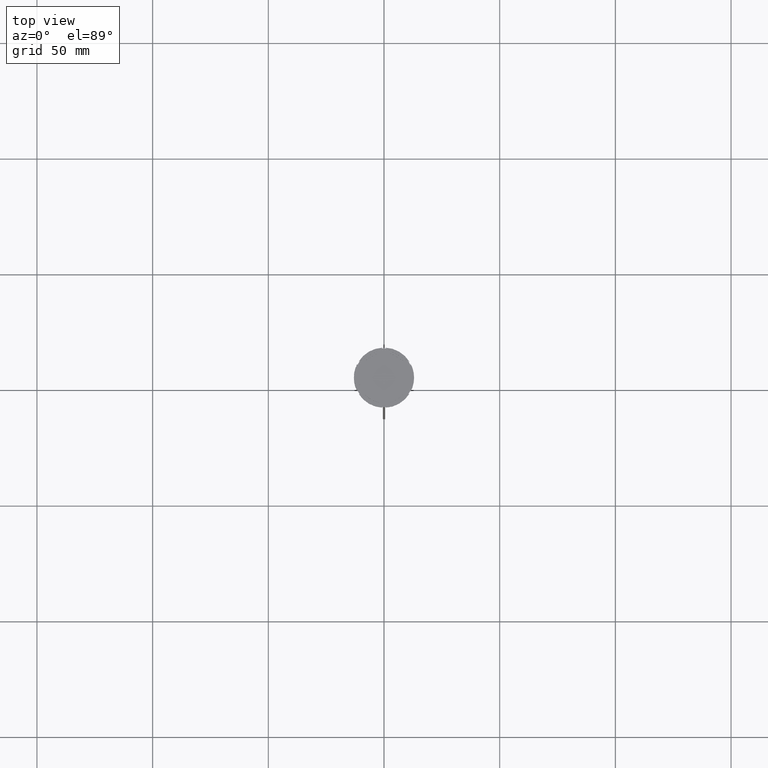
[diagram: clean part render]
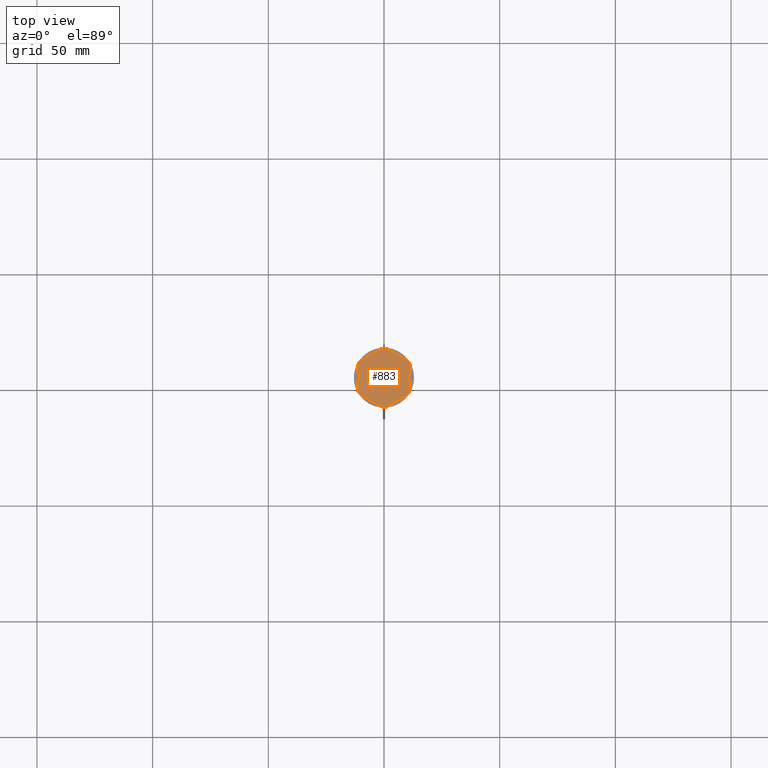
[diagram: same view with one face highlighted and labeled with its STEP entity id]
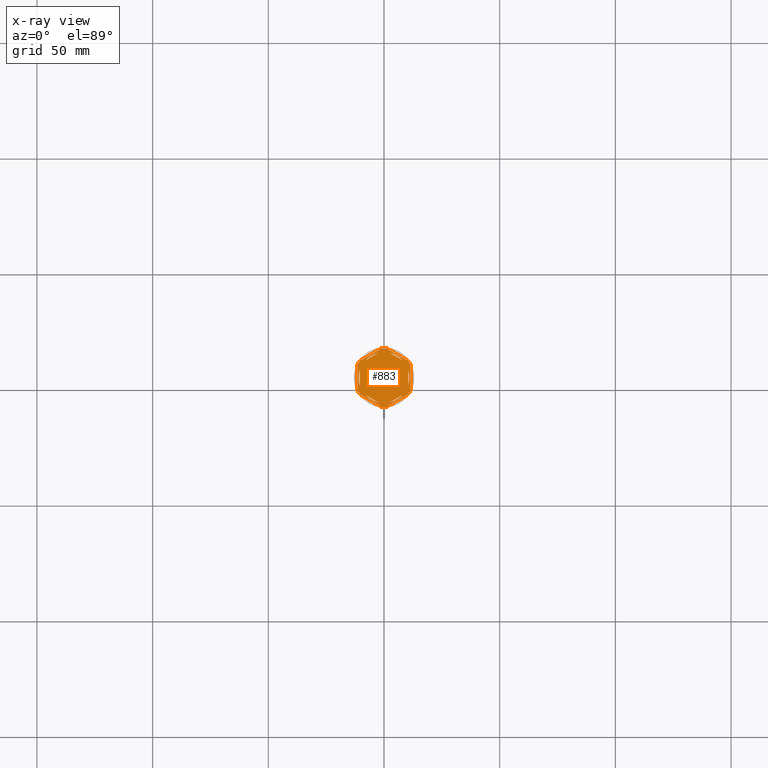
[diagram: x-ray of the same camera — body ghosted, the highlighted face saturated]
A machine part, top view. The second image highlights one B-rep face of the part: STEP entity #883.
The next image is the same camera in x-ray: the body ghosted, the highlighted face saturated — about 0% of this face is hidden behind the body in this view.
In plain terms, the highlighted planar face has unit normal (0, 0, 1).
Its self-contained STEP definition (entity closure, byte-faithful):
#8 = CARTESIAN_POINT ( 'NONE',  ( -10.49999999999999822, -6.062177826491068622, -1.000000000000000888 ) ) ;
#11 = CARTESIAN_POINT ( 'NONE',  ( 2.410545827099861871, 10.73262637081210791, -1.000000000000000888 ) ) ;
#41 = EDGE_CURVE ( 'NONE', #2086, #2226, #2778, .T. ) ;
#66 = ORIENTED_EDGE ( 'NONE', *, *, #1822, .T. ) ;
#82 = CIRCLE ( 'NONE', #1398, 12.69999999999999929 ) ;
#97 = CIRCLE ( 'NONE', #1325, 11.00000000000000000 ) ;
#116 = DIRECTION ( 'NONE',  ( 1.000000000000000000, 0.000000000000000000, 0.000000000000000000 ) ) ;
#120 = ORIENTED_EDGE ( 'NONE', *, *, #1477, .T. ) ;
#124 = CIRCLE ( 'NONE', #1816, 11.00000000000000000 ) ;
#132 = CARTESIAN_POINT ( 'NONE',  ( 1.083095244168781557, 12.65373086058254160, -1.000000000000000000 ) ) ;
#135 = CARTESIAN_POINT ( 'NONE',  ( 10.41690475583121867, -7.264853426459537467, -1.000000000000000000 ) ) ;
#140 = VERTEX_POINT ( 'NONE', #1585 ) ;
#149 = LINE ( 'NONE', #2392, #877 ) ;
#151 = LINE ( 'NONE', #8, #2001 ) ;
#156 = CARTESIAN_POINT ( 'NONE',  ( 11.50000000000000000, 6.639528095680698350, -1.000000000000000000 ) ) ;
#183 = DIRECTION ( 'NONE',  ( -0.8660254037844385966, -0.5000000000000001110, 0.000000000000000000 ) ) ;
#186 = DIRECTION ( 'NONE',  ( 1.000000000000000000, 0.000000000000000000, 0.000000000000000000 ) ) ;
#211 = CARTESIAN_POINT ( 'NONE',  ( 0.000000000000000000, 0.000000000000000000, -1.000000000000000000 ) ) ;
#223 = CARTESIAN_POINT ( 'NONE',  ( -2.410545827099867200, 10.73262637081210613, -1.000000000000000888 ) ) ;
#236 = VERTEX_POINT ( 'NONE', #1287 ) ;
#249 = VECTOR ( 'NONE', #871, 1000.000000000000227 ) ;
#261 = VERTEX_POINT ( 'NONE', #1957 ) ;
#269 = ORIENTED_EDGE ( 'NONE', *, *, #1242, .F. ) ;
#272 = CIRCLE ( 'NONE', #1066, 11.00000000000000000 ) ;
#287 = CARTESIAN_POINT ( 'NONE',  ( -10.49999999999999822, 6.062177826491068622, -1.000000000000000888 ) ) ;
#297 = CARTESIAN_POINT ( 'NONE',  ( 0.000000000000000000, 0.000000000000000000, -1.000000000000000000 ) ) ;
#312 = DIRECTION ( 'NONE',  ( 1.000000000000000000, 0.000000000000000000, 0.000000000000000000 ) ) ;
#325 = CARTESIAN_POINT ( 'NONE',  ( 11.49999999999999822, -6.639528095680694797, -1.000000000000000000 ) ) ;
#335 = AXIS2_PLACEMENT_3D ( 'NONE', #699, #1592, #1394 ) ;
#350 = EDGE_CURVE ( 'NONE', #2033, #366, #1837, .T. ) ;
#366 = VERTEX_POINT ( 'NONE', #768 ) ;
#380 = VECTOR ( 'NONE', #1051, 1000.000000000000000 ) ;
#381 = DIRECTION ( 'NONE',  ( -1.430775808321104180E-16, -1.000000000000000000, 0.000000000000000000 ) ) ;
#383 = DIRECTION ( 'NONE',  ( -0.000000000000000000, -0.000000000000000000, -1.000000000000000000 ) ) ;
#396 = DIRECTION ( 'NONE',  ( 1.000000000000000000, -1.776356839400250465E-14, 0.000000000000000000 ) ) ;
#400 = DIRECTION ( 'NONE',  ( 0.8660254037844385966, 0.4999999999999999445, 0.000000000000000000 ) ) ;
#435 = ORIENTED_EDGE ( 'NONE', *, *, #2363, .F. ) ;
#446 = CARTESIAN_POINT ( 'NONE',  ( -11.50000000000000000, -6.639528095680696573, -1.000000000000000000 ) ) ;
#459 = DIRECTION ( 'NONE',  ( -0.8660254037844384856, 0.5000000000000002220, 0.000000000000000000 ) ) ;
#460 = ORIENTED_EDGE ( 'NONE', *, *, #2708, .F. ) ;
#502 = DIRECTION ( 'NONE',  ( 0.000000000000000000, 1.000000000000000000, 0.000000000000000000 ) ) ;
#512 = EDGE_CURVE ( 'NONE', #1300, #1795, #1274, .T. ) ;
#551 = CARTESIAN_POINT ( 'NONE',  ( 0.000000000000000000, 0.000000000000000000, -1.000000000000000000 ) ) ;
#575 = VERTEX_POINT ( 'NONE', #1467 ) ;
#583 = EDGE_CURVE ( 'NONE', #1951, #1988, #1178, .T. ) ;
#597 = DIRECTION ( 'NONE',  ( 0.8660254037844387076, -0.4999999999999999445, 0.000000000000000000 ) ) ;
#607 = VERTEX_POINT ( 'NONE', #132 ) ;
#611 = CIRCLE ( 'NONE', #2249, 12.69999999999999929 ) ;
#621 = FACE_BOUND ( 'NONE', #1056, .T. ) ;
#623 = LINE ( 'NONE', #2623, #2156 ) ;
#637 = ORIENTED_EDGE ( 'NONE', *, *, #1412, .T. ) ;
#643 = VERTEX_POINT ( 'NONE', #826 ) ;
#672 = CARTESIAN_POINT ( 'NONE',  ( 0.000000000000000000, 0.000000000000000000, -1.000000000000000000 ) ) ;
#699 = CARTESIAN_POINT ( 'NONE',  ( 0.000000000000000000, 0.000000000000000000, -1.000000000000000000 ) ) ;
#724 = EDGE_CURVE ( 'NONE', #1951, #261, #1290, .T. ) ;
#747 = CIRCLE ( 'NONE', #2150, 12.69999999999999929 ) ;
#768 = CARTESIAN_POINT ( 'NONE',  ( -10.49999999999999822, 3.278719262151000624, -1.000000000000000888 ) ) ;
#769 = PLANE ( 'NONE',  #2510 ) ;
#770 = CARTESIAN_POINT ( 'NONE',  ( 11.49999999999999822, 5.388877434122992582, -1.000000000000000000 ) ) ;
#776 = CIRCLE ( 'NONE', #933, 11.00000000000000000 ) ;
#778 = VERTEX_POINT ( 'NONE', #2101 ) ;
#791 = CIRCLE ( 'NONE', #335, 12.69999999999999929 ) ;
#797 = ORIENTED_EDGE ( 'NONE', *, *, #724, .T. ) ;
#807 = CARTESIAN_POINT ( 'NONE',  ( -1.734723475976807094E-15, 12.12435565298214080, -1.000000000000000888 ) ) ;
#810 = DIRECTION ( 'NONE',  ( 1.000000000000000000, 0.000000000000000000, 0.000000000000000000 ) ) ;
#812 = CARTESIAN_POINT ( 'NONE',  ( 0.000000000000000000, 0.000000000000000000, -1.000000000000000000 ) ) ;
#826 = CARTESIAN_POINT ( 'NONE',  ( -10.41690475583121334, -7.264853426459548125, -1.000000000000000000 ) ) ;
#828 = EDGE_CURVE ( 'NONE', #2471, #575, #97, .T. ) ;
#834 = DIRECTION ( 'NONE',  ( -0.000000000000000000, -0.000000000000000000, -1.000000000000000000 ) ) ;
#839 = VECTOR ( 'NONE', #2421, 1000.000000000000000 ) ;
#841 = ORIENTED_EDGE ( 'NONE', *, *, #512, .F. ) ;
#847 = VERTEX_POINT ( 'NONE', #135 ) ;
#848 = DIRECTION ( 'NONE',  ( 0.000000000000000000, 0.000000000000000000, 1.000000000000000000 ) ) ;
#864 = EDGE_LOOP ( 'NONE', ( #2614, #1907 ) ) ;
#865 = EDGE_CURVE ( 'NONE', #1522, #1709, #747, .T. ) ;
#871 = DIRECTION ( 'NONE',  ( 0.8660254037844387076, -0.4999999999999997780, 0.000000000000000000 ) ) ;
#877 = VECTOR ( 'NONE', #381, 1000.000000000000000 ) ;
#883 = ADVANCED_FACE ( 'NONE', ( #1902, #2777, #2611, #1047, #621, #2644, #1541 ), #769, .T. ) ;
#901 = EDGE_LOOP ( 'NONE', ( #2132, #460 ) ) ;
#923 = VERTEX_POINT ( 'NONE', #2695 ) ;
#933 = AXIS2_PLACEMENT_3D ( 'NONE', #2148, #1924, #2786 ) ;
#937 = LINE ( 'NONE', #446, #249 ) ;
#951 = EDGE_LOOP ( 'NONE', ( #1796, #2595 ) ) ;
#962 = EDGE_CURVE ( 'NONE', #140, #923, #2737, .T. ) ;
#1003 = DIRECTION ( 'NONE',  ( 0.000000000000000000, 0.000000000000000000, 1.000000000000000000 ) ) ;
#1029 = DIRECTION ( 'NONE',  ( 0.000000000000000000, 0.000000000000000000, 1.000000000000000000 ) ) ;
#1043 = CARTESIAN_POINT ( 'NONE',  ( 0.000000000000000000, 0.000000000000000000, -1.000000000000000000 ) ) ;
#1047 = FACE_BOUND ( 'NONE', #951, .T. ) ;
#1051 = DIRECTION ( 'NONE',  ( -0.8660254037844388186, 0.4999999999999997224, 0.000000000000000000 ) ) ;
#1056 = EDGE_LOOP ( 'NONE', ( #2298, #1558, #1460 ) ) ;
#1066 = AXIS2_PLACEMENT_3D ( 'NONE', #1271, #1029, #116 ) ;
#1069 = VECTOR ( 'NONE', #2106, 1000.000000000000000 ) ;
#1082 = VECTOR ( 'NONE', #502, 1000.000000000000000 ) ;
#1101 = ORIENTED_EDGE ( 'NONE', *, *, #2075, .F. ) ;
#1105 = DIRECTION ( 'NONE',  ( 0.000000000000000000, 0.000000000000000000, 1.000000000000000000 ) ) ;
#1178 = CIRCLE ( 'NONE', #2783, 12.69999999999999929 ) ;
#1185 = ORIENTED_EDGE ( 'NONE', *, *, #2297, .F. ) ;
#1224 = DIRECTION ( 'NONE',  ( 1.306360520641008153E-16, 1.000000000000000000, 0.000000000000000000 ) ) ;
#1230 = DIRECTION ( 'NONE',  ( 1.000000000000000000, 0.000000000000000000, -0.000000000000000000 ) ) ;
#1242 = EDGE_CURVE ( 'NONE', #643, #261, #791, .T. ) ;
#1250 = EDGE_LOOP ( 'NONE', ( #2332, #2191, #120, #2170, #66, #1449, #797, #269, #2502, #1101, #637, #1185 ) ) ;
#1271 = CARTESIAN_POINT ( 'NONE',  ( 0.000000000000000000, 0.000000000000000000, -1.000000000000000000 ) ) ;
#1274 = CIRCLE ( 'NONE', #1450, 11.00000000000000000 ) ;
#1287 = CARTESIAN_POINT ( 'NONE',  ( -11.00000000000000000, 0.000000000000000000, -1.000000000000000000 ) ) ;
#1290 = LINE ( 'NONE', #1965, #839 ) ;
#1300 = VERTEX_POINT ( 'NONE', #1457 ) ;
#1307 = VECTOR ( 'NONE', #183, 1000.000000000000114 ) ;
#1316 = CARTESIAN_POINT ( 'NONE',  ( 0.000000000000000000, 0.000000000000000000, -1.000000000000000000 ) ) ;
#1319 = CARTESIAN_POINT ( 'NONE',  ( 0.000000000000000000, 0.000000000000000000, -1.000000000000000000 ) ) ;
#1320 = CARTESIAN_POINT ( 'NONE',  ( -10.41690475583121689, 7.264853426459546348, -1.000000000000000000 ) ) ;
#1324 = CARTESIAN_POINT ( 'NONE',  ( -1.083095244168783333, 12.65373086058254160, -1.000000000000000000 ) ) ;
#1325 = AXIS2_PLACEMENT_3D ( 'NONE', #1043, #1003, #810 ) ;
#1366 = VECTOR ( 'NONE', #1707, 999.9999999999998863 ) ;
#1374 = EDGE_CURVE ( 'NONE', #1557, #607, #611, .T. ) ;
#1379 = CARTESIAN_POINT ( 'NONE',  ( 8.089454172900135021, -7.453907108661109504, -1.000000000000000888 ) ) ;
#1389 = ORIENTED_EDGE ( 'NONE', *, *, #2207, .F. ) ;
#1394 = DIRECTION ( 'NONE',  ( 1.000000000000000000, 7.105427357601001859E-15, 0.000000000000000000 ) ) ;
#1396 = CARTESIAN_POINT ( 'NONE',  ( 8.089454172900138573, 7.453907108661105063, -1.000000000000000888 ) ) ;
#1398 = AXIS2_PLACEMENT_3D ( 'NONE', #2422, #1570, #2665 ) ;
#1412 = EDGE_CURVE ( 'NONE', #1769, #847, #623, .T. ) ;
#1428 = EDGE_LOOP ( 'NONE', ( #1389, #1624 ) ) ;
#1449 = ORIENTED_EDGE ( 'NONE', *, *, #583, .F. ) ;
#1450 = AXIS2_PLACEMENT_3D ( 'NONE', #672, #2186, #186 ) ;
#1457 = CARTESIAN_POINT ( 'NONE',  ( 10.49999999999999467, -3.278719262151014835, -1.000000000000000888 ) ) ;
#1460 = ORIENTED_EDGE ( 'NONE', *, *, #2336, .F. ) ;
#1467 = CARTESIAN_POINT ( 'NONE',  ( -8.089454172900135021, 7.453907108661106840, -1.000000000000000888 ) ) ;
#1477 = EDGE_CURVE ( 'NONE', #1522, #607, #2829, .T. ) ;
#1499 = AXIS2_PLACEMENT_3D ( 'NONE', #1316, #1987, #1687 ) ;
#1522 = VERTEX_POINT ( 'NONE', #2782 ) ;
#1541 = FACE_OUTER_BOUND ( 'NONE', #1250, .T. ) ;
#1557 = VERTEX_POINT ( 'NONE', #1324 ) ;
#1558 = ORIENTED_EDGE ( 'NONE', *, *, #350, .F. ) ;
#1570 = DIRECTION ( 'NONE',  ( -0.000000000000000000, -0.000000000000000000, -1.000000000000000000 ) ) ;
#1583 = EDGE_CURVE ( 'NONE', #643, #2625, #937, .T. ) ;
#1585 = CARTESIAN_POINT ( 'NONE',  ( -8.089454172900133244, -7.453907108661111280, -1.000000000000000888 ) ) ;
#1586 = VERTEX_POINT ( 'NONE', #11 ) ;
#1592 = DIRECTION ( 'NONE',  ( -0.000000000000000000, -0.000000000000000000, -1.000000000000000000 ) ) ;
#1624 = ORIENTED_EDGE ( 'NONE', *, *, #2759, .F. ) ;
#1645 = CARTESIAN_POINT ( 'NONE',  ( 2.410545827099865868, -10.73262637081210791, -1.000000000000000888 ) ) ;
#1677 = DIRECTION ( 'NONE',  ( 1.000000000000000000, 0.000000000000000000, 0.000000000000000000 ) ) ;
#1687 = DIRECTION ( 'NONE',  ( 1.000000000000000000, 0.000000000000000000, 0.000000000000000000 ) ) ;
#1707 = DIRECTION ( 'NONE',  ( -0.8660254037844387076, -0.4999999999999999445, 0.000000000000000000 ) ) ;
#1709 = VERTEX_POINT ( 'NONE', #770 ) ;
#1764 = VECTOR ( 'NONE', #1224, 1000.000000000000000 ) ;
#1769 = VERTEX_POINT ( 'NONE', #1845 ) ;
#1795 = VERTEX_POINT ( 'NONE', #1858 ) ;
#1796 = ORIENTED_EDGE ( 'NONE', *, *, #962, .F. ) ;
#1816 = AXIS2_PLACEMENT_3D ( 'NONE', #211, #1105, #2620 ) ;
#1822 = EDGE_CURVE ( 'NONE', #1557, #1988, #2113, .T. ) ;
#1837 = LINE ( 'NONE', #287, #1082 ) ;
#1845 = CARTESIAN_POINT ( 'NONE',  ( 1.083095244168774673, -12.65373086058253982, -1.000000000000000000 ) ) ;
#1858 = CARTESIAN_POINT ( 'NONE',  ( 10.49999999999999467, 3.278719262151012170, -1.000000000000000888 ) ) ;
#1881 = LINE ( 'NONE', #2767, #1949 ) ;
#1902 = FACE_BOUND ( 'NONE', #1428, .T. ) ;
#1907 = ORIENTED_EDGE ( 'NONE', *, *, #41, .F. ) ;
#1918 = CARTESIAN_POINT ( 'NONE',  ( -2.602085213965210642E-15, -12.12435565298214080, -1.000000000000000888 ) ) ;
#1924 = DIRECTION ( 'NONE',  ( 0.000000000000000000, 0.000000000000000000, 1.000000000000000000 ) ) ;
#1949 = VECTOR ( 'NONE', #597, 999.9999999999998863 ) ;
#1951 = VERTEX_POINT ( 'NONE', #2139 ) ;
#1955 = EDGE_CURVE ( 'NONE', #923, #140, #151, .T. ) ;
#1957 = CARTESIAN_POINT ( 'NONE',  ( -11.50000000000000000, -5.388877434122992582, -1.000000000000000000 ) ) ;
#1965 = CARTESIAN_POINT ( 'NONE',  ( -11.50000000000000000, 6.639528095680691244, -1.000000000000000000 ) ) ;
#1978 = EDGE_CURVE ( 'NONE', #366, #236, #124, .T. ) ;
#1987 = DIRECTION ( 'NONE',  ( 0.000000000000000000, 0.000000000000000000, 1.000000000000000000 ) ) ;
#1988 = VERTEX_POINT ( 'NONE', #1320 ) ;
#2001 = VECTOR ( 'NONE', #459, 1000.000000000000000 ) ;
#2033 = VERTEX_POINT ( 'NONE', #2198 ) ;
#2067 = CARTESIAN_POINT ( 'NONE',  ( -1.083095244168779780, -12.65373086058253982, -1.000000000000000000 ) ) ;
#2075 = EDGE_CURVE ( 'NONE', #1769, #2625, #82, .T. ) ;
#2078 = DIRECTION ( 'NONE',  ( 1.000000000000000000, 1.243449787580175325E-14, 0.000000000000000000 ) ) ;
#2086 = VERTEX_POINT ( 'NONE', #1379 ) ;
#2101 = CARTESIAN_POINT ( 'NONE',  ( 11.49999999999999822, -5.388877434122996135, -1.000000000000000000 ) ) ;
#2106 = DIRECTION ( 'NONE',  ( 0.8660254037844385966, 0.5000000000000001110, -0.000000000000000000 ) ) ;
#2113 = LINE ( 'NONE', #2182, #1307 ) ;
#2118 = LINE ( 'NONE', #807, #1069 ) ;
#2132 = ORIENTED_EDGE ( 'NONE', *, *, #828, .F. ) ;
#2139 = CARTESIAN_POINT ( 'NONE',  ( -11.50000000000000000, 5.388877434122992582, -1.000000000000000000 ) ) ;
#2148 = CARTESIAN_POINT ( 'NONE',  ( 0.000000000000000000, 0.000000000000000000, -1.000000000000000000 ) ) ;
#2150 = AXIS2_PLACEMENT_3D ( 'NONE', #2845, #834, #396 ) ;
#2156 = VECTOR ( 'NONE', #400, 1000.000000000000114 ) ;
#2170 = ORIENTED_EDGE ( 'NONE', *, *, #1374, .F. ) ;
#2182 = CARTESIAN_POINT ( 'NONE',  ( 0.000000000000000000, 13.27905619136138959, -1.000000000000000000 ) ) ;
#2186 = DIRECTION ( 'NONE',  ( 0.000000000000000000, 0.000000000000000000, 1.000000000000000000 ) ) ;
#2191 = ORIENTED_EDGE ( 'NONE', *, *, #865, .F. ) ;
#2198 = CARTESIAN_POINT ( 'NONE',  ( -10.49999999999999822, -3.278719262151000624, -1.000000000000000888 ) ) ;
#2207 = EDGE_CURVE ( 'NONE', #2656, #1586, #2273, .T. ) ;
#2226 = VERTEX_POINT ( 'NONE', #1645 ) ;
#2249 = AXIS2_PLACEMENT_3D ( 'NONE', #551, #2525, #2078 ) ;
#2273 = CIRCLE ( 'NONE', #2364, 11.00000000000000000 ) ;
#2297 = EDGE_CURVE ( 'NONE', #778, #847, #2451, .T. ) ;
#2298 = ORIENTED_EDGE ( 'NONE', *, *, #1978, .F. ) ;
#2315 = CARTESIAN_POINT ( 'NONE',  ( 0.000000000000000000, 0.000000000000000000, -1.000000000000000000 ) ) ;
#2324 = EDGE_LOOP ( 'NONE', ( #841, #435 ) ) ;
#2332 = ORIENTED_EDGE ( 'NONE', *, *, #2726, .T. ) ;
#2336 = EDGE_CURVE ( 'NONE', #236, #2033, #272, .T. ) ;
#2363 = EDGE_CURVE ( 'NONE', #1795, #1300, #149, .T. ) ;
#2364 = AXIS2_PLACEMENT_3D ( 'NONE', #297, #2530, #312 ) ;
#2392 = CARTESIAN_POINT ( 'NONE',  ( 10.49999999999999289, -6.062177826491073063, -1.000000000000000888 ) ) ;
#2406 = DIRECTION ( 'NONE',  ( 1.000000000000000000, 0.000000000000000000, 0.000000000000000000 ) ) ;
#2421 = DIRECTION ( 'NONE',  ( 0.000000000000000000, -1.000000000000000000, 0.000000000000000000 ) ) ;
#2422 = CARTESIAN_POINT ( 'NONE',  ( 0.000000000000000000, 0.000000000000000000, -1.000000000000000000 ) ) ;
#2451 = CIRCLE ( 'NONE', #2587, 12.69999999999999929 ) ;
#2471 = VERTEX_POINT ( 'NONE', #223 ) ;
#2502 = ORIENTED_EDGE ( 'NONE', *, *, #1583, .T. ) ;
#2510 = AXIS2_PLACEMENT_3D ( 'NONE', #2315, #848, #1230 ) ;
#2525 = DIRECTION ( 'NONE',  ( -0.000000000000000000, -0.000000000000000000, -1.000000000000000000 ) ) ;
#2530 = DIRECTION ( 'NONE',  ( 0.000000000000000000, 0.000000000000000000, 1.000000000000000000 ) ) ;
#2575 = DIRECTION ( 'NONE',  ( -0.000000000000000000, -0.000000000000000000, -1.000000000000000000 ) ) ;
#2587 = AXIS2_PLACEMENT_3D ( 'NONE', #812, #2575, #1677 ) ;
#2595 = ORIENTED_EDGE ( 'NONE', *, *, #1955, .F. ) ;
#2611 = FACE_BOUND ( 'NONE', #864, .T. ) ;
#2614 = ORIENTED_EDGE ( 'NONE', *, *, #2711, .F. ) ;
#2620 = DIRECTION ( 'NONE',  ( 1.000000000000000000, 0.000000000000000000, 0.000000000000000000 ) ) ;
#2623 = CARTESIAN_POINT ( 'NONE',  ( 5.612359739892467248E-18, -13.27905619136138959, -1.000000000000000000 ) ) ;
#2625 = VERTEX_POINT ( 'NONE', #2067 ) ;
#2644 = FACE_BOUND ( 'NONE', #901, .T. ) ;
#2656 = VERTEX_POINT ( 'NONE', #1396 ) ;
#2665 = DIRECTION ( 'NONE',  ( 1.000000000000000000, 0.000000000000000000, 0.000000000000000000 ) ) ;
#2695 = CARTESIAN_POINT ( 'NONE',  ( -2.410545827099876082, -10.73262637081210435, -1.000000000000000888 ) ) ;
#2708 = EDGE_CURVE ( 'NONE', #575, #2471, #2118, .T. ) ;
#2711 = EDGE_CURVE ( 'NONE', #2226, #2086, #776, .T. ) ;
#2726 = EDGE_CURVE ( 'NONE', #778, #1709, #2801, .T. ) ;
#2737 = CIRCLE ( 'NONE', #1499, 11.00000000000000000 ) ;
#2759 = EDGE_CURVE ( 'NONE', #1586, #2656, #1881, .T. ) ;
#2767 = CARTESIAN_POINT ( 'NONE',  ( 10.49999999999999467, 6.062177826491072175, -1.000000000000000888 ) ) ;
#2777 = FACE_BOUND ( 'NONE', #2324, .T. ) ;
#2778 = LINE ( 'NONE', #1918, #1366 ) ;
#2782 = CARTESIAN_POINT ( 'NONE',  ( 10.41690475583121156, 7.264853426459550789, -1.000000000000000000 ) ) ;
#2783 = AXIS2_PLACEMENT_3D ( 'NONE', #1319, #383, #2406 ) ;
#2786 = DIRECTION ( 'NONE',  ( 1.000000000000000000, 0.000000000000000000, 0.000000000000000000 ) ) ;
#2801 = LINE ( 'NONE', #325, #1764 ) ;
#2829 = LINE ( 'NONE', #156, #380 ) ;
#2845 = CARTESIAN_POINT ( 'NONE',  ( 0.000000000000000000, 0.000000000000000000, -1.000000000000000000 ) ) ;